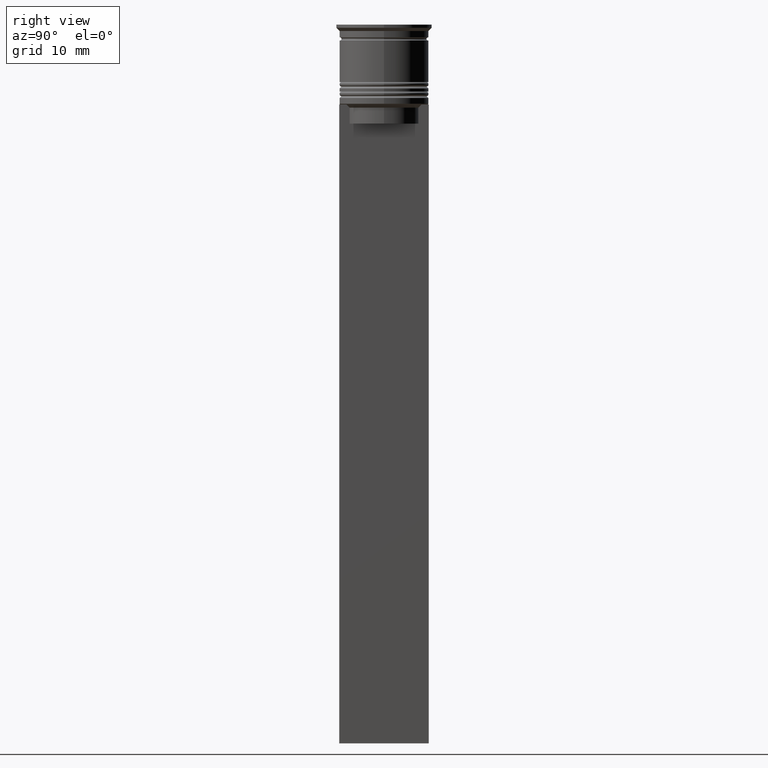
[diagram: clean part render]
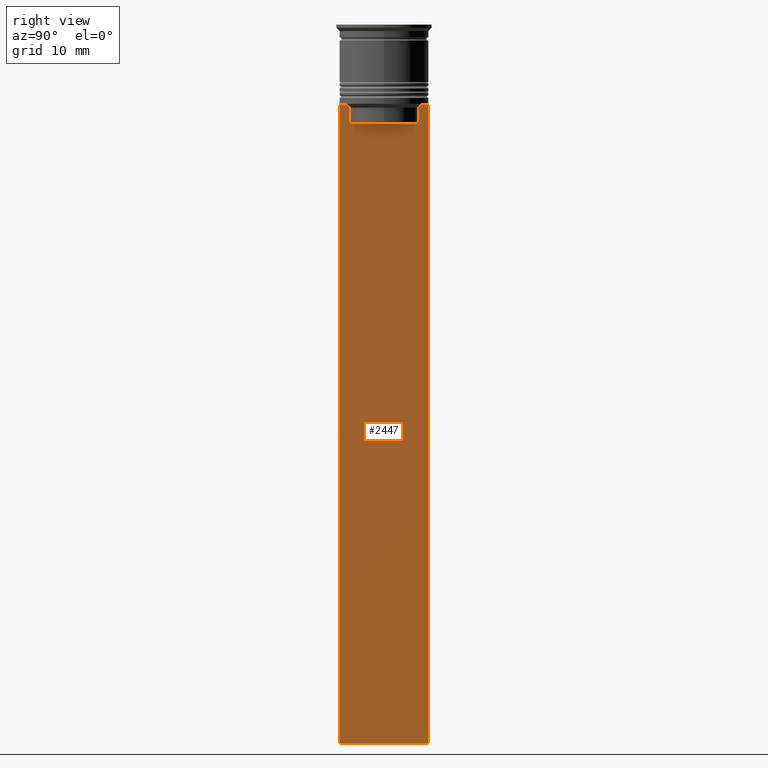
[diagram: same view with one face highlighted and labeled with its STEP entity id]
A machine part, right view. The second image highlights one B-rep face of the part: STEP entity #2447.
In plain terms, the highlighted planar face has unit normal (-1, 0, 0).
Its self-contained STEP definition (entity closure, byte-faithful):
#7 = DIRECTION ( 'NONE',  ( 0.000000000000000000, 0.000000000000000000, -1.000000000000000000 ) ) ;
#24 = ORIENTED_EDGE ( 'NONE', *, *, #803, .T. ) ;
#33 = B_SPLINE_CURVE_WITH_KNOTS ( 'NONE', 3,
 ( #1732, #461, #2345, #1956 ),
 .UNSPECIFIED., .F., .F.,
 ( 4, 4 ),
 ( 0.02539176325380714666, 0.02610162431828674801 ),
 .UNSPECIFIED. ) ;
#58 = CARTESIAN_POINT ( 'NONE',  ( 0.5000000000000000000, -6.999999999999997335, 1.535668847618198329 ) ) ;
#112 = CARTESIAN_POINT ( 'NONE',  ( 0.5000000000000000000, -5.376802023508029826, -15.50000000000000000 ) ) ;
#164 = ORIENTED_EDGE ( 'NONE', *, *, #1507, .T. ) ;
#168 = CARTESIAN_POINT ( 'NONE',  ( 0.5000000000000000000, -5.376802023508029826, -13.00000000000000178 ) ) ;
#259 = CARTESIAN_POINT ( 'NONE',  ( 0.5000000000000000000, 5.878775382679629402, -12.50000000000000000 ) ) ;
#342 = VECTOR ( 'NONE', #536, 1000.000000000000000 ) ;
#353 = LINE ( 'NONE', #1852, #694 ) ;
#390 = CARTESIAN_POINT ( 'NONE',  ( 0.5000000000000000000, -6.999999999999997335, -12.50000000000000000 ) ) ;
#416 = VECTOR ( 'NONE', #7, 1000.000000000000000 ) ;
#426 = EDGE_CURVE ( 'NONE', #2028, #1394, #1674, .T. ) ;
#448 = PLANE ( 'NONE',  #2388 ) ;
#452 = EDGE_CURVE ( 'NONE', #2316, #495, #2380, .T. ) ;
#455 = CARTESIAN_POINT ( 'NONE',  ( 0.5000000000000000000, -6.999999999999997335, -12.50000000000000000 ) ) ;
#461 = CARTESIAN_POINT ( 'NONE',  ( 0.5000000000000000000, -5.544156999454441959, -12.83336396790503642 ) ) ;
#463 = CARTESIAN_POINT ( 'NONE',  ( 0.5000000000000000000, -5.376802023508029826, 0.000000000000000000 ) ) ;
#475 = EDGE_CURVE ( 'NONE', #1166, #1426, #1062, .T. ) ;
#495 = VERTEX_POINT ( 'NONE', #507 ) ;
#507 = CARTESIAN_POINT ( 'NONE',  ( 0.5000000000000000000, 7.000000000000002665, -112.5000000000000000 ) ) ;
#536 = DIRECTION ( 'NONE',  ( 0.000000000000000000, -1.000000000000000000, 0.000000000000000000 ) ) ;
#541 = ORIENTED_EDGE ( 'NONE', *, *, #1319, .T. ) ;
#566 = CARTESIAN_POINT ( 'NONE',  ( 0.5000000000000000000, 5.376802023508029826, -13.00000000000000178 ) ) ;
#601 = ORIENTED_EDGE ( 'NONE', *, *, #475, .T. ) ;
#602 = ORIENTED_EDGE ( 'NONE', *, *, #1547, .T. ) ;
#633 = VERTEX_POINT ( 'NONE', #866 ) ;
#685 = CARTESIAN_POINT ( 'NONE',  ( 0.5000000000000000000, -6.999999999999997335, -12.50000000000000000 ) ) ;
#686 = EDGE_CURVE ( 'NONE', #633, #495, #1743, .T. ) ;
#694 = VECTOR ( 'NONE', #730, 1000.000000000000000 ) ;
#702 = CARTESIAN_POINT ( 'NONE',  ( 0.5000000000000000000, -6.999999999999997335, -12.50000000000000000 ) ) ;
#729 = VECTOR ( 'NONE', #1914, 1000.000000000000000 ) ;
#730 = DIRECTION ( 'NONE',  ( 0.000000000000000000, -1.000000000000000000, 0.000000000000000000 ) ) ;
#735 = VECTOR ( 'NONE', #2417, 1000.000000000000000 ) ;
#738 = CARTESIAN_POINT ( 'NONE',  ( 0.5000000000000000000, -5.878775382679629402, -12.50000000000000000 ) ) ;
#755 = VECTOR ( 'NONE', #1800, 1000.000000000000000 ) ;
#780 = ORIENTED_EDGE ( 'NONE', *, *, #426, .T. ) ;
#789 = VERTEX_POINT ( 'NONE', #738 ) ;
#803 = EDGE_CURVE ( 'NONE', #1064, #789, #33, .T. ) ;
#806 = CARTESIAN_POINT ( 'NONE',  ( 0.5000000000000000000, -6.999999999999997335, -112.5000000000000000 ) ) ;
#839 = CARTESIAN_POINT ( 'NONE',  ( 0.5000000000000000000, 5.711478846560141598, -12.66669470477064685 ) ) ;
#852 = EDGE_LOOP ( 'NONE', ( #1448, #601, #2267, #541, #2386, #24, #602, #780, #1773, #1505, #1691, #164 ) ) ;
#866 = CARTESIAN_POINT ( 'NONE',  ( 0.5000000000000000000, -6.999999999999997335, -112.5000000000000000 ) ) ;
#946 = LINE ( 'NONE', #390, #976 ) ;
#976 = VECTOR ( 'NONE', #1176, 1000.000000000000000 ) ;
#1001 = CARTESIAN_POINT ( 'NONE',  ( 0.5000000000000000000, 5.544156989057553275, -12.83336397825725861 ) ) ;
#1062 = B_SPLINE_CURVE_WITH_KNOTS ( 'NONE', 3,
 ( #1385, #839, #1001, #2124 ),
 .UNSPECIFIED., .F., .F.,
 ( 4, 4 ),
 ( 0.01003009312103698807, 0.01073859663834952557 ),
 .UNSPECIFIED. ) ;
#1064 = VERTEX_POINT ( 'NONE', #168 ) ;
#1097 = VERTEX_POINT ( 'NONE', #2106 ) ;
#1154 = LINE ( 'NONE', #1904, #1932 ) ;
#1166 = VERTEX_POINT ( 'NONE', #259 ) ;
#1176 = DIRECTION ( 'NONE',  ( 0.000000000000000000, -1.000000000000000000, 0.000000000000000000 ) ) ;
#1180 = DIRECTION ( 'NONE',  ( -1.000000000000000000, 0.000000000000000000, 0.000000000000000000 ) ) ;
#1190 = VECTOR ( 'NONE', #1283, 1000.000000000000000 ) ;
#1244 = EDGE_CURVE ( 'NONE', #2139, #1064, #2173, .T. ) ;
#1272 = VECTOR ( 'NONE', #2392, 1000.000000000000000 ) ;
#1283 = DIRECTION ( 'NONE',  ( 0.000000000000000000, -1.000000000000000000, 0.000000000000000000 ) ) ;
#1319 = EDGE_CURVE ( 'NONE', #1097, #2139, #2038, .T. ) ;
#1385 = CARTESIAN_POINT ( 'NONE',  ( 0.5000000000000000000, 5.878775382679629402, -12.50000000000000000 ) ) ;
#1394 = VERTEX_POINT ( 'NONE', #685 ) ;
#1426 = VERTEX_POINT ( 'NONE', #566 ) ;
#1448 = ORIENTED_EDGE ( 'NONE', *, *, #2140, .T. ) ;
#1475 = LINE ( 'NONE', #702, #342 ) ;
#1505 = ORIENTED_EDGE ( 'NONE', *, *, #686, .T. ) ;
#1507 = EDGE_CURVE ( 'NONE', #2316, #1582, #353, .T. ) ;
#1510 = CARTESIAN_POINT ( 'NONE',  ( 0.5000000000000000000, 7.000000000000002665, -12.50000000000000000 ) ) ;
#1547 = EDGE_CURVE ( 'NONE', #789, #2028, #946, .T. ) ;
#1582 = VERTEX_POINT ( 'NONE', #2313 ) ;
#1607 = DIRECTION ( 'NONE',  ( 0.000000000000000000, 0.000000000000000000, 1.000000000000000000 ) ) ;
#1610 = CARTESIAN_POINT ( 'NONE',  ( 0.5000000000000000000, -6.881860213634102053, -12.50000000000000000 ) ) ;
#1629 = EDGE_CURVE ( 'NONE', #1394, #633, #1755, .T. ) ;
#1674 = LINE ( 'NONE', #455, #1190 ) ;
#1691 = ORIENTED_EDGE ( 'NONE', *, *, #452, .F. ) ;
#1732 = CARTESIAN_POINT ( 'NONE',  ( 0.5000000000000000000, -5.376802023508029826, -13.00000000000000178 ) ) ;
#1743 = LINE ( 'NONE', #806, #1272 ) ;
#1755 = LINE ( 'NONE', #2328, #416 ) ;
#1763 = FACE_OUTER_BOUND ( 'NONE', #852, .T. ) ;
#1773 = ORIENTED_EDGE ( 'NONE', *, *, #1629, .T. ) ;
#1800 = DIRECTION ( 'NONE',  ( 0.000000000000000000, 0.000000000000000000, -1.000000000000000000 ) ) ;
#1852 = CARTESIAN_POINT ( 'NONE',  ( 0.5000000000000000000, -6.999999999999997335, -12.50000000000000000 ) ) ;
#1904 = CARTESIAN_POINT ( 'NONE',  ( 0.5000000000000000000, 5.376802023508029826, 0.000000000000000000 ) ) ;
#1914 = DIRECTION ( 'NONE',  ( -0.000000000000000000, -0.000000000000000000, 1.000000000000000000 ) ) ;
#1932 = VECTOR ( 'NONE', #2091, 1000.000000000000000 ) ;
#1956 = CARTESIAN_POINT ( 'NONE',  ( 0.5000000000000000000, -5.878775382679629402, -12.50000000000000000 ) ) ;
#1996 = CARTESIAN_POINT ( 'NONE',  ( 0.5000000000000000000, 7.000000000000002665, 1.535668847618198329 ) ) ;
#2028 = VERTEX_POINT ( 'NONE', #1610 ) ;
#2038 = LINE ( 'NONE', #2395, #735 ) ;
#2091 = DIRECTION ( 'NONE',  ( 0.000000000000000000, 0.000000000000000000, -1.000000000000000000 ) ) ;
#2106 = CARTESIAN_POINT ( 'NONE',  ( 0.5000000000000000000, 5.376802023508029826, -15.50000000000000000 ) ) ;
#2124 = CARTESIAN_POINT ( 'NONE',  ( 0.5000000000000000000, 5.376802023508029826, -13.00000000000000178 ) ) ;
#2139 = VERTEX_POINT ( 'NONE', #112 ) ;
#2140 = EDGE_CURVE ( 'NONE', #1582, #1166, #1475, .T. ) ;
#2173 = LINE ( 'NONE', #463, #729 ) ;
#2267 = ORIENTED_EDGE ( 'NONE', *, *, #2269, .T. ) ;
#2269 = EDGE_CURVE ( 'NONE', #1426, #1097, #1154, .T. ) ;
#2313 = CARTESIAN_POINT ( 'NONE',  ( 0.5000000000000000000, 6.881860213634102053, -12.50000000000000000 ) ) ;
#2316 = VERTEX_POINT ( 'NONE', #1510 ) ;
#2328 = CARTESIAN_POINT ( 'NONE',  ( 0.5000000000000000000, -6.999999999999997335, 1.535668847618198329 ) ) ;
#2345 = CARTESIAN_POINT ( 'NONE',  ( 0.5000000000000000000, -5.711478856069293286, -12.66669469529570335 ) ) ;
#2380 = LINE ( 'NONE', #1996, #755 ) ;
#2386 = ORIENTED_EDGE ( 'NONE', *, *, #1244, .T. ) ;
#2388 = AXIS2_PLACEMENT_3D ( 'NONE', #58, #1180, #1607 ) ;
#2392 = DIRECTION ( 'NONE',  ( 0.000000000000000000, 1.000000000000000000, 0.000000000000000000 ) ) ;
#2395 = CARTESIAN_POINT ( 'NONE',  ( 0.5000000000000000000, 5.400000000000003908, -15.50000000000000000 ) ) ;
#2417 = DIRECTION ( 'NONE',  ( 0.000000000000000000, -1.000000000000000000, 0.000000000000000000 ) ) ;
#2447 = ADVANCED_FACE ( 'NONE', ( #1763 ), #448, .F. ) ;